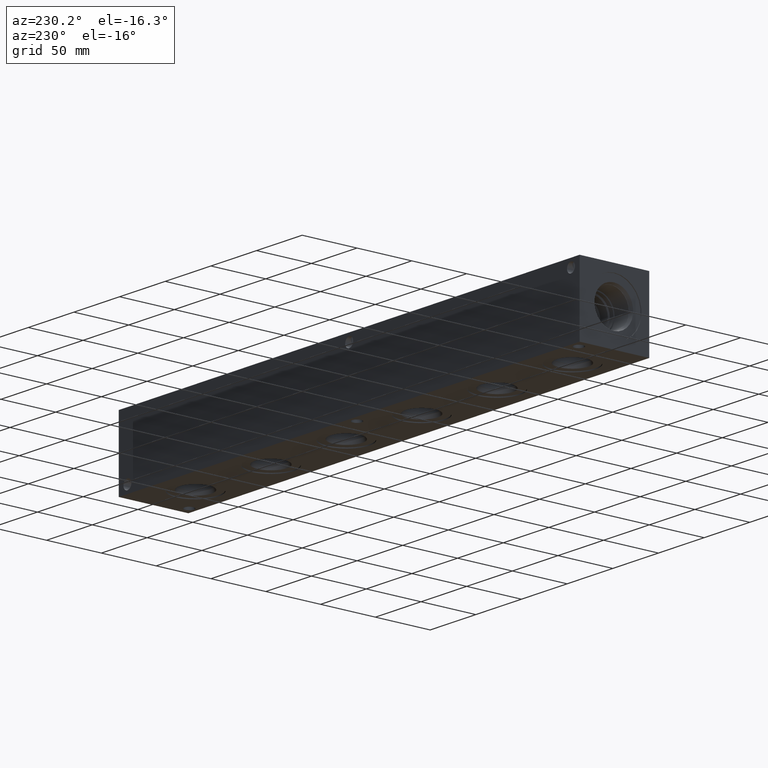
[diagram: clean part render]
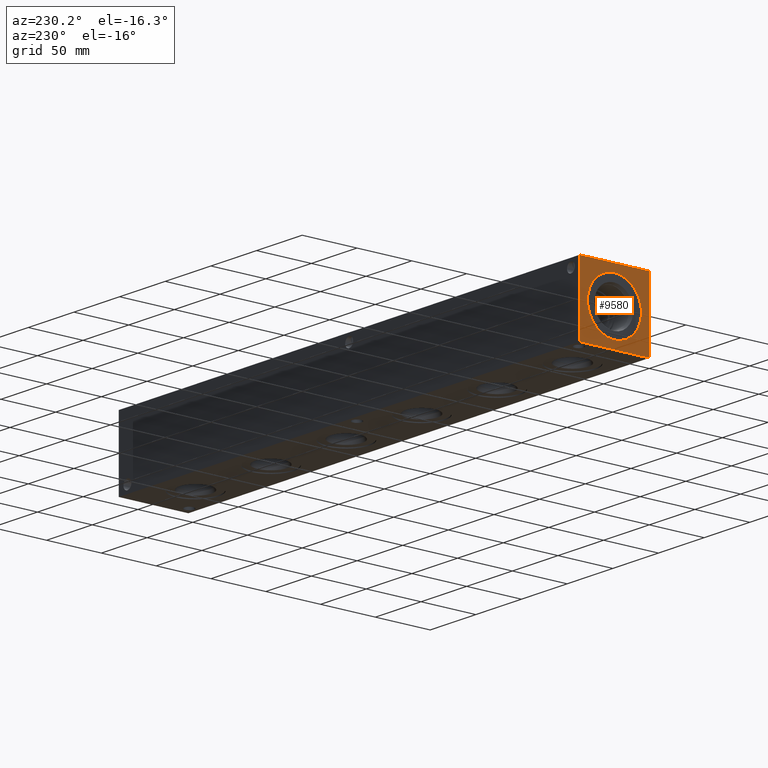
[diagram: same view with one face highlighted and labeled with its STEP entity id]
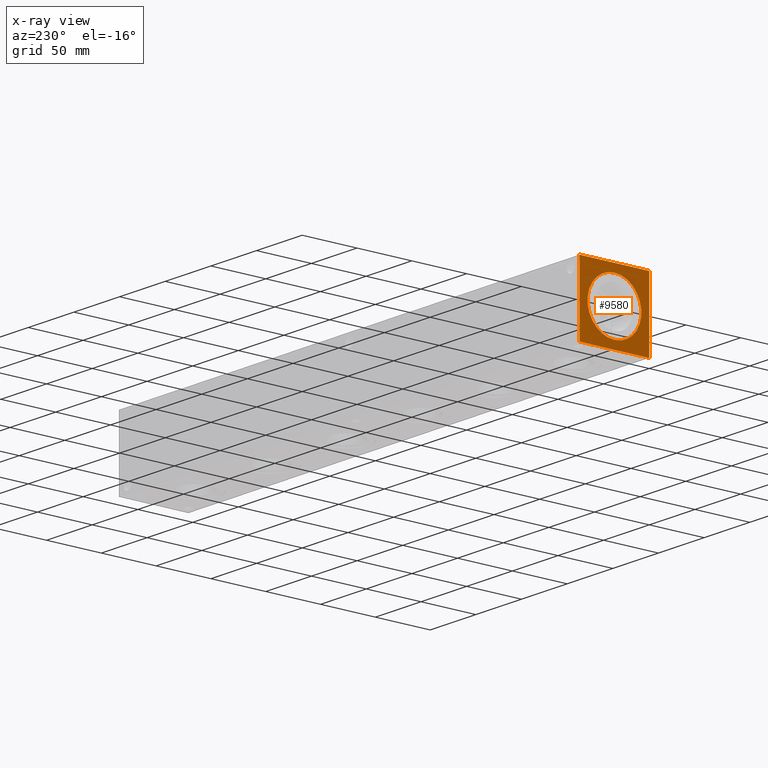
[diagram: x-ray of the same camera — body ghosted, the highlighted face saturated]
A machine part, auxiliary view. The second image highlights one B-rep face of the part: STEP entity #9580.
The next image is the same camera in x-ray: the body ghosted, the highlighted face saturated — about 0% of this face is hidden behind the body in this view.
In plain terms, the highlighted planar face has unit normal (-1, 0, 0).
Its self-contained STEP definition (entity closure, byte-faithful):
#460=CIRCLE('',#10276,24.5618);
#461=CIRCLE('',#10277,24.5618);
#530=FACE_BOUND('',#1943,.T.);
#1388=FACE_OUTER_BOUND('',#1942,.T.);
#1942=EDGE_LOOP('',(#8487,#8488,#8489,#8490));
#1943=EDGE_LOOP('',(#8491,#8492));
#2251=LINE('',#14617,#3046);
#2752=LINE('',#16845,#3547);
#2753=LINE('',#16846,#3548);
#2754=LINE('',#16847,#3549);
#3046=VECTOR('',#10734,10.);
#3547=VECTOR('',#12467,10.);
#3548=VECTOR('',#12468,10.);
#3549=VECTOR('',#12469,10.);
#3865=VERTEX_POINT('',#14610);
#3868=VERTEX_POINT('',#14615);
#4450=VERTEX_POINT('',#16814);
#4451=VERTEX_POINT('',#16815);
#4460=VERTEX_POINT('',#16843);
#4461=VERTEX_POINT('',#16844);
#4932=EDGE_CURVE('',#3868,#3865,#2251,.T.);
#5800=EDGE_CURVE('',#4450,#4451,#460,.T.);
#5801=EDGE_CURVE('',#4451,#4450,#461,.T.);
#5814=EDGE_CURVE('',#4460,#4461,#2752,.T.);
#5815=EDGE_CURVE('',#4461,#3865,#2753,.T.);
#5816=EDGE_CURVE('',#4460,#3868,#2754,.T.);
#8487=ORIENTED_EDGE('',*,*,#5814,.T.);
#8488=ORIENTED_EDGE('',*,*,#5815,.T.);
#8489=ORIENTED_EDGE('',*,*,#4932,.F.);
#8490=ORIENTED_EDGE('',*,*,#5816,.F.);
#8491=ORIENTED_EDGE('',*,*,#5800,.T.);
#8492=ORIENTED_EDGE('',*,*,#5801,.T.);
#8780=PLANE('',#10290);
#9580=ADVANCED_FACE('',(#1388,#530),#8780,.T.);
#10276=AXIS2_PLACEMENT_3D('',#16816,#12433,#12434);
#10277=AXIS2_PLACEMENT_3D('',#16817,#12435,#12436);
#10290=AXIS2_PLACEMENT_3D('',#16842,#12465,#12466);
#10734=DIRECTION('',(0.,-1.,0.));
#12433=DIRECTION('center_axis',(1.,0.,0.));
#12434=DIRECTION('ref_axis',(0.,0.,1.));
#12435=DIRECTION('center_axis',(1.,0.,0.));
#12436=DIRECTION('ref_axis',(0.,0.,1.));
#12465=DIRECTION('center_axis',(-1.,0.,0.));
#12466=DIRECTION('ref_axis',(0.,-1.,0.));
#12467=DIRECTION('',(0.,-1.,0.));
#12468=DIRECTION('',(0.,0.,1.));
#12469=DIRECTION('',(0.,0.,1.));
#14610=CARTESIAN_POINT('',(0.,0.,63.5));
#14615=CARTESIAN_POINT('',(0.,63.5,63.5));
#14617=CARTESIAN_POINT('',(0.,63.5,63.5));
#16814=CARTESIAN_POINT('',(0.,31.75,56.3118));
#16815=CARTESIAN_POINT('',(0.,31.75,7.1882));
#16816=CARTESIAN_POINT('Origin',(0.,31.75,31.75));
#16817=CARTESIAN_POINT('Origin',(0.,31.75,31.75));
#16842=CARTESIAN_POINT('Origin',(0.,63.5,0.));
#16843=CARTESIAN_POINT('',(0.,63.5,0.));
#16844=CARTESIAN_POINT('',(0.,0.,0.));
#16845=CARTESIAN_POINT('',(0.,63.5,0.));
#16846=CARTESIAN_POINT('',(0.,0.,0.));
#16847=CARTESIAN_POINT('',(0.,63.5,0.));